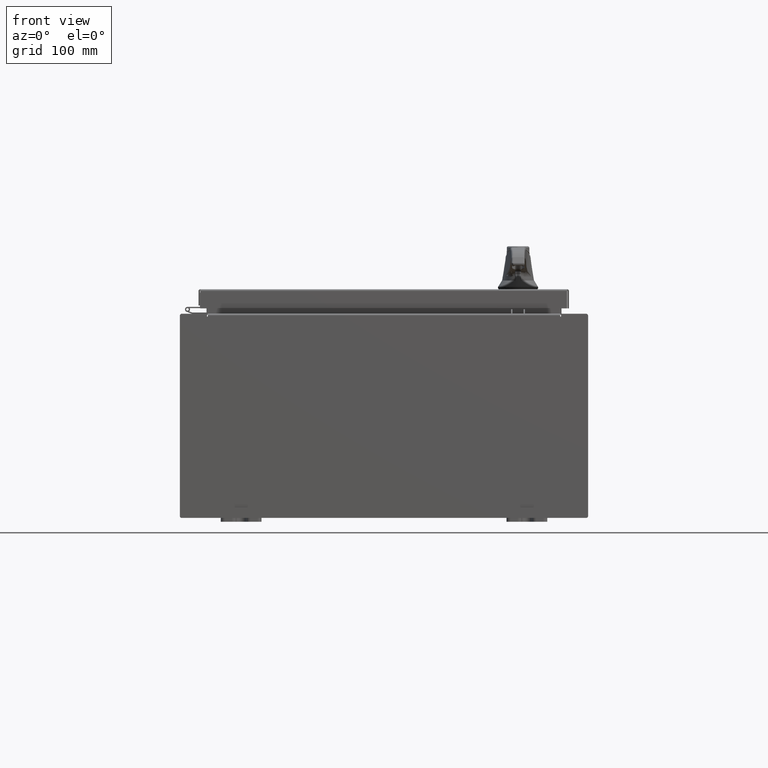
[diagram: clean part render]
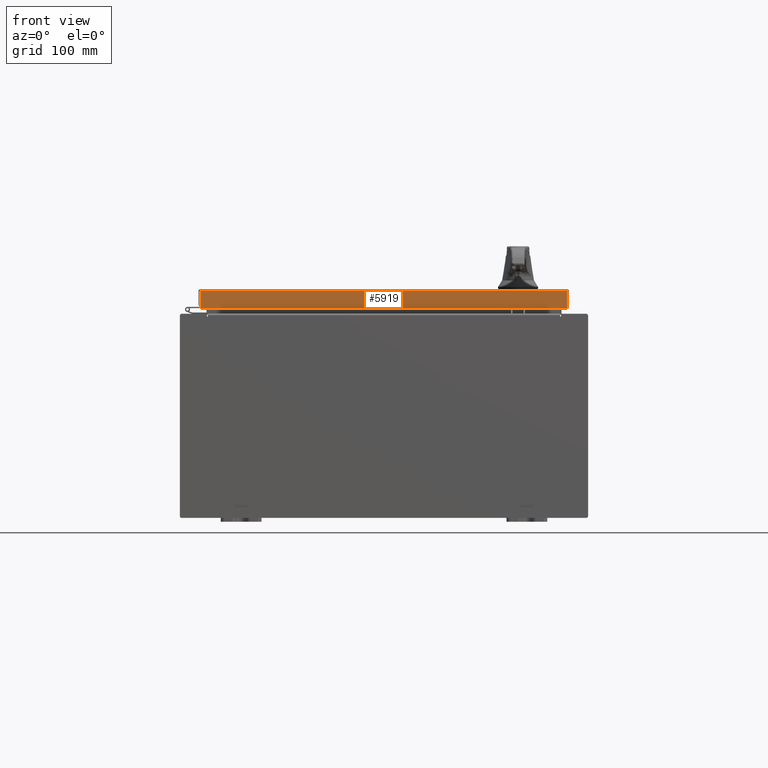
[diagram: same view with one face highlighted and labeled with its STEP entity id]
A machine part, front view. The second image highlights one B-rep face of the part: STEP entity #5919.
In plain terms, the highlighted planar face has unit normal (-0, 1, -0).
Its self-contained STEP definition (entity closure, byte-faithful):
#1532 = CARTESIAN_POINT ( 'NONE',  ( -8.989157864376267100, -11.09400000000000100, 2.835548029954469300E-014 ) ) ;
#2922 = CARTESIAN_POINT ( 'NONE',  ( 8.989157864376267100, -11.09400000000000100, -0.07469999999999980800 ) ) ;
#3586 = VECTOR ( 'NONE', #98871, 39.37007874015748100 ) ;
#4721 = CARTESIAN_POINT ( 'NONE',  ( 1.335409633915462200E-015, -11.09400000000000100, 2.835548029954469000E-014 ) ) ;
#5919 = ADVANCED_FACE ( 'NONE', ( #8312 ), #91473, .F. ) ;
#8312 = FACE_OUTER_BOUND ( 'NONE', #69198, .T. ) ;
#8862 = VERTEX_POINT ( 'NONE', #107699 ) ;
#12104 = ORIENTED_EDGE ( 'NONE', *, *, #101433, .F. ) ;
#12596 = CARTESIAN_POINT ( 'NONE',  ( -8.989157864376267100, -11.09400000000000700, -0.9376999999999976500 ) ) ;
#15040 = VECTOR ( 'NONE', #54508, 39.37007874015748100 ) ;
#22035 = ORIENTED_EDGE ( 'NONE', *, *, #67919, .T. ) ;
#28947 = VERTEX_POINT ( 'NONE', #12596 ) ;
#36939 = VERTEX_POINT ( 'NONE', #82493 ) ;
#37753 = DIRECTION ( 'NONE',  ( -0.0000000000000000000, -2.532419924601866100E-015, -1.000000000000000000 ) ) ;
#38235 = CARTESIAN_POINT ( 'NONE',  ( 9.077999999999999400, -11.09400000000000300, -0.9376999999999997600 ) ) ;
#39582 = DIRECTION ( 'NONE',  ( -1.203722403024573700E-016, 1.000000000000000000, -2.532419924601866100E-015 ) ) ;
#41481 = VERTEX_POINT ( 'NONE', #55680 ) ;
#42430 = LINE ( 'NONE', #2922, #85809 ) ;
#46797 = EDGE_CURVE ( 'NONE', #36939, #28947, #52405, .T. ) ;
#51038 = CARTESIAN_POINT ( 'NONE',  ( 9.077999999999999400, -11.09400000000000100, -0.08770000000000008300 ) ) ;
#52405 = LINE ( 'NONE', #38235, #3586 ) ;
#54137 = EDGE_CURVE ( 'NONE', #8862, #36939, #42430, .T. ) ;
#54508 = DIRECTION ( 'NONE',  ( 0.0000000000000000000, -2.532419924601866100E-015, -1.000000000000000000 ) ) ;
#55680 = CARTESIAN_POINT ( 'NONE',  ( -8.989157864376267100, -11.09400000000000100, -0.08769999999999791900 ) ) ;
#56050 = LINE ( 'NONE', #51038, #79113 ) ;
#67919 = EDGE_CURVE ( 'NONE', #41481, #28947, #81456, .T. ) ;
#69198 = EDGE_LOOP ( 'NONE', ( #12104, #22035, #110307, #92559 ) ) ;
#70054 = AXIS2_PLACEMENT_3D ( 'NONE', #4721, #39582, #100192 ) ;
#79113 = VECTOR ( 'NONE', #111655, 39.37007874015748100 ) ;
#81456 = LINE ( 'NONE', #1532, #15040 ) ;
#82493 = CARTESIAN_POINT ( 'NONE',  ( 8.989157864376267100, -11.09400000000000300, -0.9376999999999997600 ) ) ;
#85809 = VECTOR ( 'NONE', #37753, 39.37007874015748100 ) ;
#91473 = PLANE ( 'NONE',  #70054 ) ;
#92559 = ORIENTED_EDGE ( 'NONE', *, *, #54137, .F. ) ;
#98871 = DIRECTION ( 'NONE',  ( -1.000000000000000000, -1.203722403024570700E-016, 1.203722403024570700E-016 ) ) ;
#100192 = DIRECTION ( 'NONE',  ( 0.0000000000000000000, 2.532419924601866100E-015, 1.000000000000000000 ) ) ;
#101433 = EDGE_CURVE ( 'NONE', #41481, #8862, #56050, .T. ) ;
#107699 = CARTESIAN_POINT ( 'NONE',  ( 8.989157864376267100, -11.09400000000000100, -0.08769999999999898700 ) ) ;
#110307 = ORIENTED_EDGE ( 'NONE', *, *, #46797, .F. ) ;
#111655 = DIRECTION ( 'NONE',  ( 1.000000000000000000, 1.203722403024570700E-016, -1.203722403024570700E-016 ) ) ;